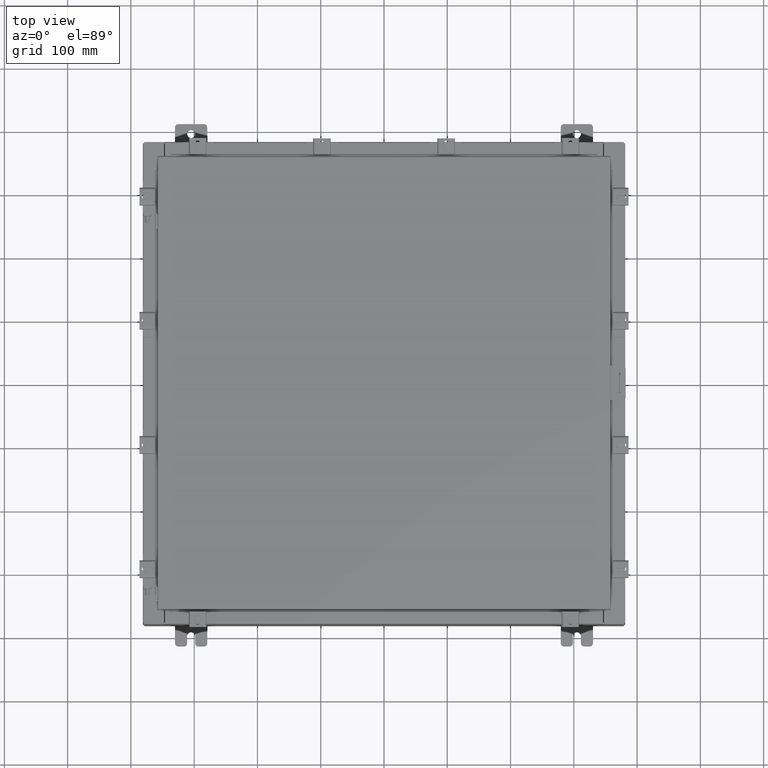
[diagram: clean part render]
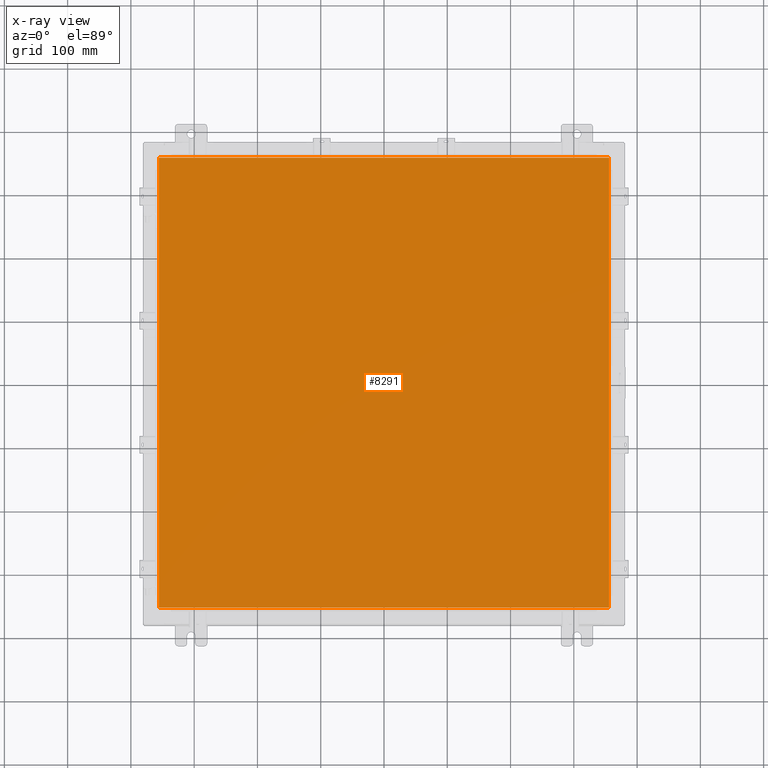
[diagram: x-ray — body ghosted, one internal face saturated and labeled with its STEP entity id]
A machine part, top view, then the same camera in x-ray: the body is ghosted and one INTERNAL B-rep face — a face not visible from any outside direction — is saturated and labeled: STEP entity #8291.
In plain terms, the highlighted planar face has unit normal (0, 0, -1).
Its self-contained STEP definition (entity closure, byte-faithful):
#967 = VERTEX_POINT ( 'NONE', #22465 ) ;
#1348 = VERTEX_POINT ( 'NONE', #21222 ) ;
#2063 = CARTESIAN_POINT ( 'NONE',  ( -14.00629999999999800, -14.00629999999999800, -0.07470000000000015500 ) ) ;
#2467 = CARTESIAN_POINT ( 'NONE',  ( 14.00629999999999800, -14.00629999999999800, -0.07470000000000015500 ) ) ;
#3474 = VERTEX_POINT ( 'NONE', #5577 ) ;
#3745 = VECTOR ( 'NONE', #7712, 39.37007874015748100 ) ;
#3758 = DIRECTION ( 'NONE',  ( -1.000000000000000000, -0.0000000000000000000, -0.0000000000000000000 ) ) ;
#3898 = ORIENTED_EDGE ( 'NONE', *, *, #4161, .F. ) ;
#4161 = EDGE_CURVE ( 'NONE', #4634, #967, #11374, .T. ) ;
#4171 = CARTESIAN_POINT ( 'NONE',  ( 0.0000000000000000000, 0.0000000000000000000, -0.07470000000000015500 ) ) ;
#4634 = VERTEX_POINT ( 'NONE', #22022 ) ;
#5577 = CARTESIAN_POINT ( 'NONE',  ( -14.00629999999999800, -14.00629999999999800, -0.07470000000000015500 ) ) ;
#5866 = VECTOR ( 'NONE', #3758, 39.37007874015748100 ) ;
#6046 = DIRECTION ( 'NONE',  ( 0.0000000000000000000, 0.0000000000000000000, -1.000000000000000000 ) ) ;
#6526 = LINE ( 'NONE', #2467, #14123 ) ;
#7712 = DIRECTION ( 'NONE',  ( 1.000000000000000000, -0.0000000000000000000, -0.0000000000000000000 ) ) ;
#8291 = ADVANCED_FACE ( 'NONE', ( #15800 ), #15323, .T. ) ;
#8435 = CARTESIAN_POINT ( 'NONE',  ( -14.00629999999999800, 14.00629999999999800, -0.07470000000000015500 ) ) ;
#11052 = EDGE_LOOP ( 'NONE', ( #11231, #23328, #21829, #3898 ) ) ;
#11231 = ORIENTED_EDGE ( 'NONE', *, *, #22148, .F. ) ;
#11374 = LINE ( 'NONE', #14905, #5866 ) ;
#13372 = EDGE_CURVE ( 'NONE', #967, #3474, #15213, .T. ) ;
#14069 = DIRECTION ( 'NONE',  ( 0.0000000000000000000, -1.000000000000000000, 0.0000000000000000000 ) ) ;
#14123 = VECTOR ( 'NONE', #17389, 39.37007874015748100 ) ;
#14905 = CARTESIAN_POINT ( 'NONE',  ( 14.00629999999999800, 14.00629999999999800, -0.07470000000000015500 ) ) ;
#15213 = LINE ( 'NONE', #8435, #19030 ) ;
#15323 = PLANE ( 'NONE',  #17037 ) ;
#15800 = FACE_OUTER_BOUND ( 'NONE', #11052, .T. ) ;
#16653 = EDGE_CURVE ( 'NONE', #3474, #1348, #18639, .T. ) ;
#17037 = AXIS2_PLACEMENT_3D ( 'NONE', #4171, #6046, #19112 ) ;
#17389 = DIRECTION ( 'NONE',  ( 0.0000000000000000000, 1.000000000000000000, 0.0000000000000000000 ) ) ;
#18639 = LINE ( 'NONE', #2063, #3745 ) ;
#19030 = VECTOR ( 'NONE', #14069, 39.37007874015748100 ) ;
#19112 = DIRECTION ( 'NONE',  ( -1.000000000000000000, 0.0000000000000000000, -0.0000000000000000000 ) ) ;
#21222 = CARTESIAN_POINT ( 'NONE',  ( 14.00629999999999800, -14.00629999999999800, -0.07470000000000015500 ) ) ;
#21829 = ORIENTED_EDGE ( 'NONE', *, *, #13372, .F. ) ;
#22022 = CARTESIAN_POINT ( 'NONE',  ( 14.00629999999999800, 14.00629999999999800, -0.07470000000000015500 ) ) ;
#22148 = EDGE_CURVE ( 'NONE', #1348, #4634, #6526, .T. ) ;
#22465 = CARTESIAN_POINT ( 'NONE',  ( -14.00629999999999800, 14.00629999999999800, -0.07470000000000015500 ) ) ;
#23328 = ORIENTED_EDGE ( 'NONE', *, *, #16653, .F. ) ;